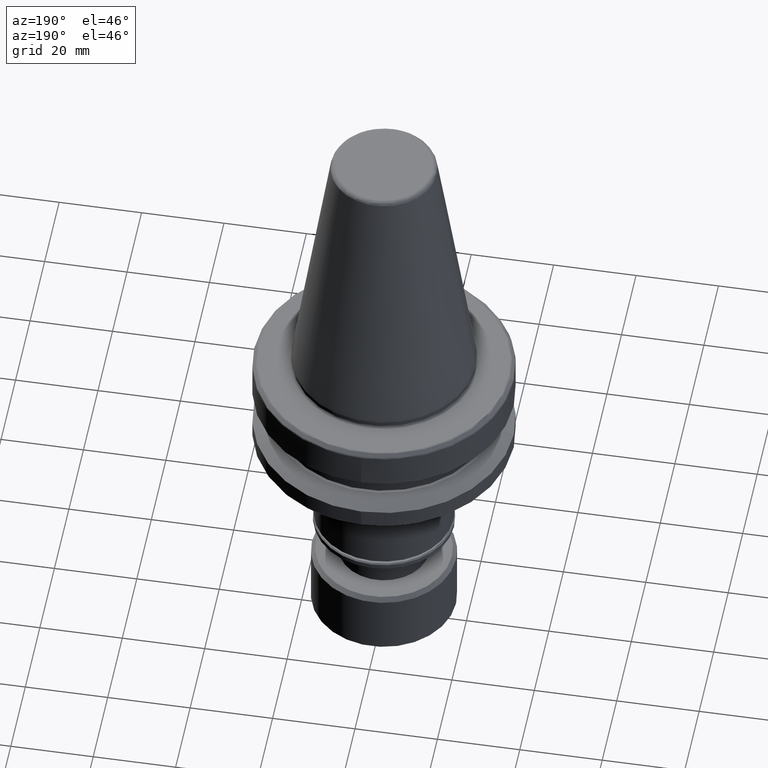
[diagram: clean part render]
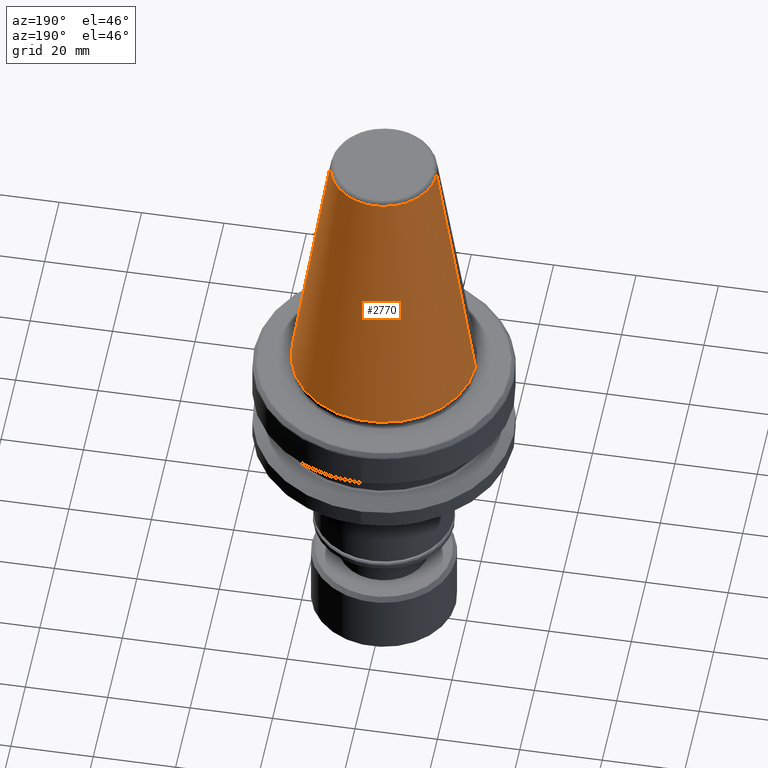
[diagram: same view with one face highlighted and labeled with its STEP entity id]
A machine part, auxiliary view. The second image highlights one B-rep face of the part: STEP entity #2770.
In plain terms, the highlighted conical surface has half-angle 8.297 deg.
Its self-contained STEP definition (entity closure, byte-faithful):
#32 = ORIENTED_EDGE ( 'NONE', *, *, #4065, .T. ) ;
#123 = CARTESIAN_POINT ( 'NONE',  ( -12.81219950696881500, -1.150453881886354600E-009, 64.54430822699541200 ) ) ;
#152 = EDGE_CURVE ( 'NONE', #1469, #187, #794, .T. ) ;
#187 = VERTEX_POINT ( 'NONE', #629 ) ;
#234 = ORIENTED_EDGE ( 'NONE', *, *, #3286, .F. ) ;
#402 = CARTESIAN_POINT ( 'NONE',  ( 0.0000000000000000000, 0.0000000000000000000, 64.54430822700000200 ) ) ;
#476 = VERTEX_POINT ( 'NONE', #123 ) ;
#629 = CARTESIAN_POINT ( 'NONE',  ( -22.22499999999999800, 0.0000000000000000000, 0.0000000000000000000 ) ) ;
#649 = CONICAL_SURFACE ( 'NONE', #1007, 12.81219950700000300, 0.1448138465489547400 ) ;
#794 = CIRCLE ( 'NONE', #3200, 22.22499999999999800 ) ;
#877 = CARTESIAN_POINT ( 'NONE',  ( 22.22499999999999800, 2.721777511104992100E-015, 0.0000000000000000000 ) ) ;
#912 = VECTOR ( 'NONE', #1844, 1000.000000000000000 ) ;
#1007 = AXIS2_PLACEMENT_3D ( 'NONE', #402, #1079, #1391 ) ;
#1079 = DIRECTION ( 'NONE',  ( 0.0000000000000000000, 0.0000000000000000000, -1.000000000000000000 ) ) ;
#1391 = DIRECTION ( 'NONE',  ( -1.000000000000000000, 0.0000000000000000000, 0.0000000000000000000 ) ) ;
#1405 = CARTESIAN_POINT ( 'NONE',  ( 12.81219950700000300, 1.569041911628485000E-015, 64.54430822700000200 ) ) ;
#1469 = VERTEX_POINT ( 'NONE', #877 ) ;
#1556 = ORIENTED_EDGE ( 'NONE', *, *, #152, .T. ) ;
#1606 = DIRECTION ( 'NONE',  ( -0.0000000000000000000, -0.0000000000000000000, 1.000000000000000000 ) ) ;
#1640 = FACE_OUTER_BOUND ( 'NONE', #1963, .T. ) ;
#1797 = LINE ( 'NONE', #4050, #2432 ) ;
#1798 = LINE ( 'NONE', #1405, #912 ) ;
#1844 = DIRECTION ( 'NONE',  ( 0.1443082272688266400, 1.767266086153973400E-017, -0.9895327864919528600 ) ) ;
#1866 = CARTESIAN_POINT ( 'NONE',  ( 0.0000000000000000000, 0.0000000000000000000, 0.0000000000000000000 ) ) ;
#1963 = EDGE_LOOP ( 'NONE', ( #234, #32, #1556, #3906 ) ) ;
#2073 = DIRECTION ( 'NONE',  ( -0.1443082272688266400, 0.0000000000000000000, -0.9895327864919528600 ) ) ;
#2432 = VECTOR ( 'NONE', #2073, 1000.000000000000000 ) ;
#2770 = ADVANCED_FACE ( 'NONE', ( #1640 ), #649, .T. ) ;
#2778 = EDGE_CURVE ( 'NONE', #476, #187, #1797, .T. ) ;
#2955 = CIRCLE ( 'NONE', #3603, 12.81219950700000300 ) ;
#3200 = AXIS2_PLACEMENT_3D ( 'NONE', #1866, #4043, #4075 ) ;
#3286 = EDGE_CURVE ( 'NONE', #3535, #476, #2955, .T. ) ;
#3535 = VERTEX_POINT ( 'NONE', #3840 ) ;
#3603 = AXIS2_PLACEMENT_3D ( 'NONE', #3615, #1606, #3927 ) ;
#3615 = CARTESIAN_POINT ( 'NONE',  ( 0.0000000000000000000, 0.0000000000000000000, 64.54430822699997300 ) ) ;
#3840 = CARTESIAN_POINT ( 'NONE',  ( 12.81219950696690000, -3.941739068562204500E-009, 64.54430822700854300 ) ) ;
#3906 = ORIENTED_EDGE ( 'NONE', *, *, #2778, .F. ) ;
#3927 = DIRECTION ( 'NONE',  ( -1.000000000000000000, 8.881784197001252300E-016, 2.166339635943424900E-015 ) ) ;
#4043 = DIRECTION ( 'NONE',  ( 0.0000000000000000000, 0.0000000000000000000, 1.000000000000000000 ) ) ;
#4050 = CARTESIAN_POINT ( 'NONE',  ( -12.81219950700000300, 0.0000000000000000000, 64.54430822700000200 ) ) ;
#4065 = EDGE_CURVE ( 'NONE', #3535, #1469, #1798, .T. ) ;
#4075 = DIRECTION ( 'NONE',  ( 1.000000000000000000, 0.0000000000000000000, 0.0000000000000000000 ) ) ;